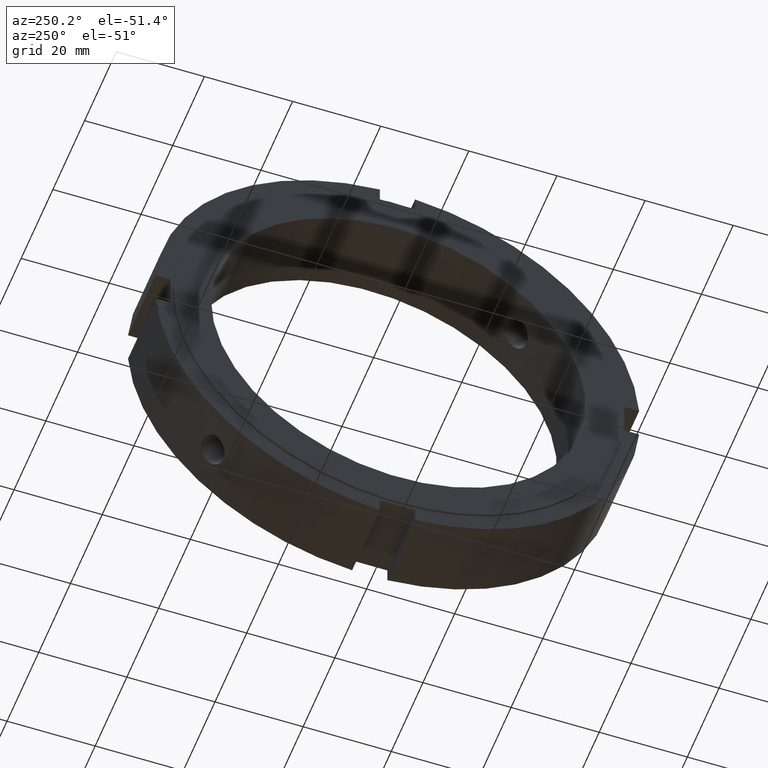
[diagram: clean part render]
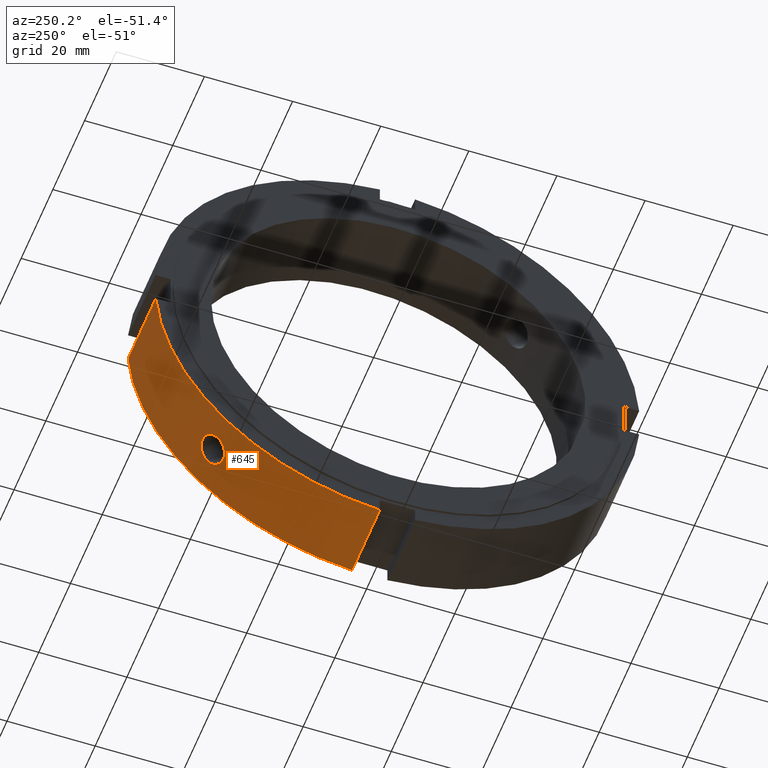
[diagram: same view with one face highlighted and labeled with its STEP entity id]
A machine part, auxiliary view. The second image highlights one B-rep face of the part: STEP entity #645.
In plain terms, the highlighted cylindrical surface (partial cylindrical patch) has radius 55 mm, axis along (1, 0, 0).
Its self-contained STEP definition (entity closure, byte-faithful):
#161=CARTESIAN_POINT('',(8.999999999999993,36.469734500368695,-41.169873274915687));
#162=VERTEX_POINT('',#161);
#163=CARTESIAN_POINT('',(8.999999999999993,36.469734500368702,-41.169873274915687));
#164=CARTESIAN_POINT('',(9.417415254868974,36.469734500368702,-41.169873274915687));
#165=CARTESIAN_POINT('',(9.862583720516927,36.532449117381574,-41.114583991320202));
#166=CARTESIAN_POINT('',(10.681395329114478,36.785715859128906,-40.888139649283289));
#167=CARTESIAN_POINT('',(11.055047103038262,36.976070573276161,-40.716795088843902));
#168=CARTESIAN_POINT('',(11.645091538414089,37.411138679036036,-40.317414351692506));
#169=CARTESIAN_POINT('',(11.900851649529365,37.684847924466773,-40.062700106208837));
#170=CARTESIAN_POINT('',(12.240058692793207,38.277229172886408,-39.497106599537815));
#171=CARTESIAN_POINT('',(12.323499999999994,38.595715941127011,-39.186029989393212));
#172=CARTESIAN_POINT('',(12.323499999999994,39.186029989393212,-38.595715941127018));
#173=CARTESIAN_POINT('',(12.240058692793207,39.497106599537815,-38.277229172886408));
#174=CARTESIAN_POINT('',(11.900851649529361,40.062700106208844,-37.684847924466773));
#175=CARTESIAN_POINT('',(11.645091538414093,40.317414351692513,-37.411138679036029));
#176=CARTESIAN_POINT('',(11.055047103038259,40.716795088843909,-36.976070573276154));
#177=CARTESIAN_POINT('',(10.681395329114469,40.888139649283289,-36.785715859128906));
#178=CARTESIAN_POINT('',(9.862583720516922,41.114583991320202,-36.532449117381582));
#179=CARTESIAN_POINT('',(9.417415254868972,41.169873274915680,-36.469734500368709));
#180=CARTESIAN_POINT('',(8.582584745131015,41.169873274915680,-36.469734500368709));
#181=CARTESIAN_POINT('',(8.137416279483068,41.114583991320202,-36.532449117381589));
#182=CARTESIAN_POINT('',(7.318604670885519,40.888139649283289,-36.785715859128914));
#183=CARTESIAN_POINT('',(6.944952896961728,40.716795088843909,-36.976070573276154));
#184=CARTESIAN_POINT('',(6.354908461585894,40.317414351692513,-37.411138679036029));
#185=CARTESIAN_POINT('',(6.099148350470623,40.062700106208837,-37.684847924466773));
#186=CARTESIAN_POINT('',(5.759941307206777,39.497106599537815,-38.277229172886408));
#187=CARTESIAN_POINT('',(5.676499999999994,39.186029989393212,-38.595715941127018));
#188=CARTESIAN_POINT('',(5.676499999999994,38.595715941127011,-39.186029989393212));
#189=CARTESIAN_POINT('',(5.759941307206780,38.277229172886408,-39.497106599537815));
#190=CARTESIAN_POINT('',(6.099148350470624,37.684847924466773,-40.062700106208837));
#191=CARTESIAN_POINT('',(6.354908461585898,37.411138679036036,-40.317414351692506));
#192=CARTESIAN_POINT('',(6.944952896961725,36.976070573276161,-40.716795088843902));
#193=CARTESIAN_POINT('',(7.318604670885507,36.785715859128906,-40.888139649283289));
#194=CARTESIAN_POINT('',(8.137416279483055,36.532449117381574,-41.114583991320202));
#195=CARTESIAN_POINT('',(8.582584745131014,36.469734500368702,-41.169873274915687));
#196=CARTESIAN_POINT('',(8.999999999999993,36.469734500368702,-41.169873274915687));
#197=B_SPLINE_CURVE_WITH_KNOTS('',3,(#163,#164,#165,#166,#167,#168,#169,#170,#171,#172,#173,#174,#175,#176,#177,#178,#179,#180,#181,#182,#183,#184,#185,#186,#187,#188,#189,#190,#191,#192,#193,#194,#195,#196),.UNSPECIFIED.,.T.,.U.,(4,2,2,2,2,2,2,2,2,2,2,2,2,2,2,2,4),(0.0,0.125224576460694,0.250449152921388,0.375673672889002,0.500898192856615,0.626122712824230,0.751347232791844,0.876571809252538,1.001796385713231,1.127020962173925,1.252245538634618,1.377470058602233,1.502694578569848,1.627919098537461,1.753143618505074,1.878368194965769,2.003592771426463),.UNSPECIFIED.);
#198=EDGE_CURVE('',#162,#162,#197,.T.);
#289=CARTESIAN_POINT('',(0.499999999999985,3.999999999999988,-54.854352607609911));
#290=VERTEX_POINT('',#289);
#299=CARTESIAN_POINT('',(17.999999999999989,3.999999999999988,-54.854352607609911));
#300=VERTEX_POINT('',#299);
#301=CARTESIAN_POINT('',(17.999999999999989,3.999999999999988,-54.854352607609911));
#302=DIRECTION('',(-1.0,0.0,0.0));
#303=VECTOR('',#302,17.500000000000007);
#304=LINE('',#301,#303);
#305=EDGE_CURVE('',#300,#290,#304,.T.);
#610=CARTESIAN_POINT('',(9.249999999999988,0.0,0.0));
#611=DIRECTION('',(1.0,0.0,0.0));
#612=DIRECTION('',(0.0,1.0,0.0));
#613=AXIS2_PLACEMENT_3D('',#610,#611,#612);
#614=CYLINDRICAL_SURFACE('',#613,55.0);
#615=ORIENTED_EDGE('',*,*,#305,.T.);
#616=CARTESIAN_POINT('',(0.499999999999985,54.854352607609911,-3.999999999999997));
#617=VERTEX_POINT('',#616);
#618=CARTESIAN_POINT('',(0.499999999999985,0.0,0.0));
#619=DIRECTION('',(1.0,0.0,0.0));
#620=DIRECTION('',(0.0,1.0,0.0));
#621=AXIS2_PLACEMENT_3D('',#618,#619,#620);
#622=CIRCLE('',#621,55.0);
#623=EDGE_CURVE('',#290,#617,#622,.T.);
#624=ORIENTED_EDGE('',*,*,#623,.T.);
#625=CARTESIAN_POINT('',(17.999999999999989,54.854352607609911,-3.999999999999997));
#626=VERTEX_POINT('',#625);
#627=CARTESIAN_POINT('',(0.499999999999984,54.854352607609911,-3.999999999999997));
#628=DIRECTION('',(1.0,0.0,0.0));
#629=VECTOR('',#628,17.500000000000007);
#630=LINE('',#627,#629);
#631=EDGE_CURVE('',#617,#626,#630,.T.);
#632=ORIENTED_EDGE('',*,*,#631,.T.);
#633=CARTESIAN_POINT('',(17.999999999999989,0.0,0.0));
#634=DIRECTION('',(1.0,0.0,0.0));
#635=DIRECTION('',(0.0,1.0,0.0));
#636=AXIS2_PLACEMENT_3D('',#633,#634,#635);
#637=CIRCLE('',#636,55.0);
#638=EDGE_CURVE('',#300,#626,#637,.T.);
#639=ORIENTED_EDGE('',*,*,#638,.F.);
#640=EDGE_LOOP('',(#615,#624,#632,#639));
#641=FACE_OUTER_BOUND('',#640,.T.);
#642=ORIENTED_EDGE('',*,*,#198,.T.);
#643=EDGE_LOOP('',(#642));
#644=FACE_BOUND('',#643,.T.);
#645=ADVANCED_FACE('',(#641,#644),#614,.T.);